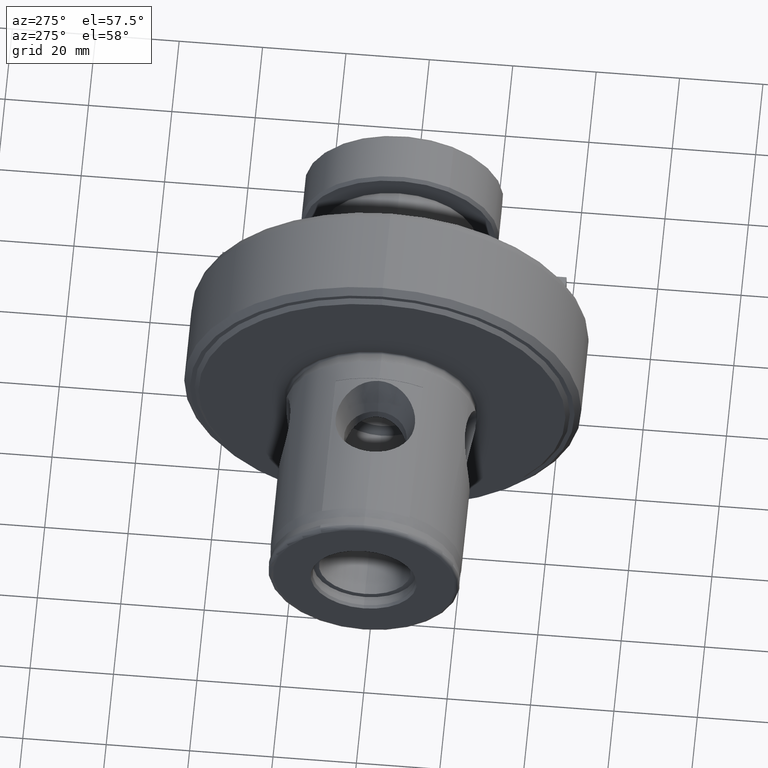
[diagram: clean part render]
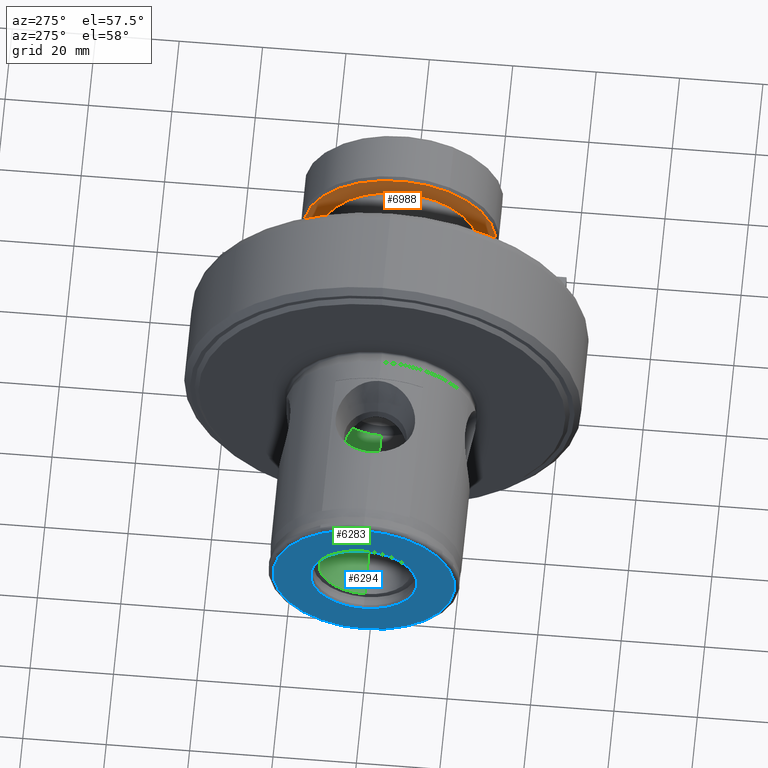
[diagram: same view with three faces highlighted in distinct colors, each labeled with its STEP entity id]
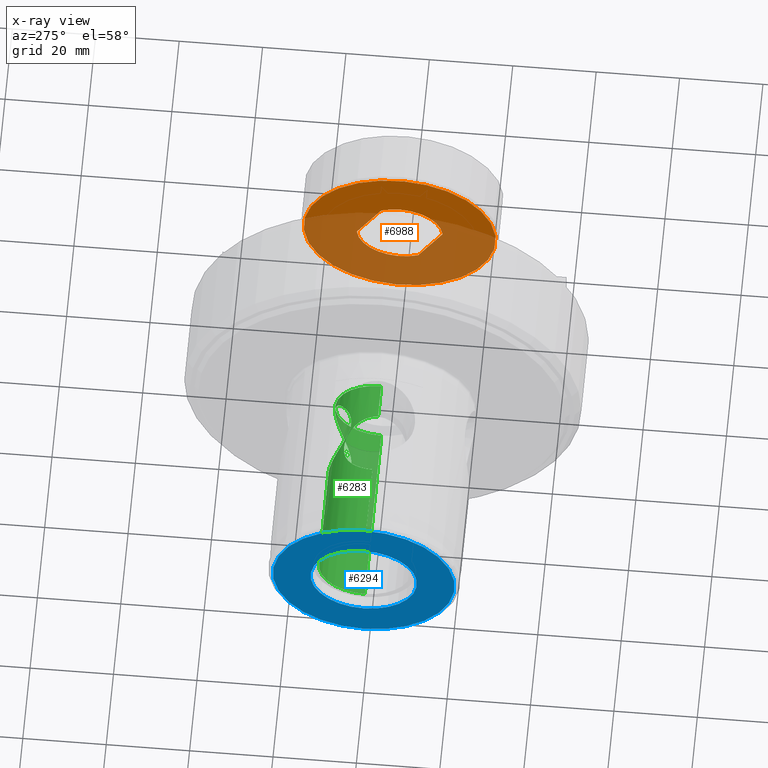
[diagram: x-ray of the same camera — body ghosted, the three highlighted faces saturated]
A machine part, auxiliary view with three faces highlighted in distinct colors.
The next image is the same camera in x-ray (body ghosted, the three faces saturated) — at least one of them is partly hidden behind the body in this view.
Their STEP definitions:

[orange] entity #6988 — the highlighted planar face has unit normal (-1, -0, 0).
#1291 = DIRECTION ( 'NONE',  ( -1.000000000000000000, -0.0000000000000000000, -0.0000000000000000000 ) ) ;
#1331 = DIRECTION ( 'NONE',  ( 0.0000000000000000000, 0.0000000000000000000, 1.000000000000000000 ) ) ;
#1335 = CARTESIAN_POINT ( 'NONE',  ( 12.69999999999999600, 0.0000000000000000000, 0.0000000000000000000 ) ) ;
#1336 = DIRECTION ( 'NONE',  ( 0.0000000000000000000, 0.0000000000000000000, 1.000000000000000000 ) ) ;
#1337 = DIRECTION ( 'NONE',  ( -1.000000000000000000, -0.0000000000000000000, -0.0000000000000000000 ) ) ;
#1338 = CARTESIAN_POINT ( 'NONE',  ( 12.70000000000000300, 0.0000000000000000000, 0.0000000000000000000 ) ) ;
#1717 = EDGE_LOOP ( 'NONE', ( #2624, #2626 ) ) ;
#2193 = CIRCLE ( 'NONE', #3172, 23.05050000000000300 ) ;
#2204 = CIRCLE ( 'NONE', #3171, 10.31239999999991700 ) ;
#2215 = CIRCLE ( 'NONE', #3173, 10.31239999999991700 ) ;
#2546 = EDGE_CURVE ( 'NONE', #4644, #4586, #2193, .T. ) ;
#2549 = EDGE_CURVE ( 'NONE', #4573, #4574, #2204, .T. ) ;
#2555 = EDGE_CURVE ( 'NONE', #4559, #4560, #2215, .T. ) ;
#2614 = ORIENTED_EDGE ( 'NONE', *, *, #2555, .T. ) ;
#2616 = ORIENTED_EDGE ( 'NONE', *, *, #6553, .F. ) ;
#2618 = ORIENTED_EDGE ( 'NONE', *, *, #6551, .T. ) ;
#2620 = ORIENTED_EDGE ( 'NONE', *, *, #2549, .T. ) ;
#2622 = ORIENTED_EDGE ( 'NONE', *, *, #6555, .F. ) ;
#2624 = ORIENTED_EDGE ( 'NONE', *, *, #2546, .F. ) ;
#2626 = ORIENTED_EDGE ( 'NONE', *, *, #6550, .F. ) ;
#3171 = AXIS2_PLACEMENT_3D ( 'NONE', #1335, #1291, #1331 ) ;
#3172 = AXIS2_PLACEMENT_3D ( 'NONE', #1338, #1337, #1336 ) ;
#3173 = AXIS2_PLACEMENT_3D ( 'NONE', #4831, #4841, #4842 ) ;
#4559 = VERTEX_POINT ( 'NONE', #6013 ) ;
#4560 = VERTEX_POINT ( 'NONE', #6014 ) ;
#4573 = VERTEX_POINT ( 'NONE', #6027 ) ;
#4574 = VERTEX_POINT ( 'NONE', #6028 ) ;
#4586 = VERTEX_POINT ( 'NONE', #6040 ) ;
#4644 = VERTEX_POINT ( 'NONE', #6095 ) ;
#4831 = CARTESIAN_POINT ( 'NONE',  ( 12.69999999999999600, 0.0000000000000000000, 0.0000000000000000000 ) ) ;
#4841 = DIRECTION ( 'NONE',  ( -1.000000000000000000, -0.0000000000000000000, -0.0000000000000000000 ) ) ;
#4842 = DIRECTION ( 'NONE',  ( 0.0000000000000000000, 0.0000000000000000000, 1.000000000000000000 ) ) ;
#6013 = CARTESIAN_POINT ( 'NONE',  ( 12.69999999999999900, 8.500000000000000000, -5.839143238523804200 ) ) ;
#6014 = CARTESIAN_POINT ( 'NONE',  ( 12.69999999999999900, -8.500000000000000000, -5.839143238523804200 ) ) ;
#6027 = CARTESIAN_POINT ( 'NONE',  ( 12.69999999999999600, 0.0000000000000000000, 10.31239999999991300 ) ) ;
#6028 = CARTESIAN_POINT ( 'NONE',  ( 12.69999999999999900, 8.500000000000000000, 5.839143238523803300 ) ) ;
#6040 = CARTESIAN_POINT ( 'NONE',  ( 12.70000000000000300, 2.869531147422120600E-015, -23.05050000000000300 ) ) ;
#6095 = CARTESIAN_POINT ( 'NONE',  ( 12.70000000000000300, 0.0000000000000000000, 23.05050000000000300 ) ) ;
#6550 = EDGE_CURVE ( 'NONE', #4586, #4644, #7563, .T. ) ;
#6551 = EDGE_CURVE ( 'NONE', #9303, #4573, #7565, .T. ) ;
#6553 = EDGE_CURVE ( 'NONE', #9303, #4560, #7566, .T. ) ;
#6555 = EDGE_CURVE ( 'NONE', #4559, #4574, #7558, .T. ) ;
#6831 = EDGE_LOOP ( 'NONE', ( #2614, #2616, #2618, #2620, #2622 ) ) ;
#6988 = ADVANCED_FACE ( 'NONE', ( #7640, #7641 ), #8690, .T. ) ;
#7558 = LINE ( 'NONE', #8542, #7564 ) ;
#7563 = CIRCLE ( 'NONE', #9053, 23.05050000000000300 ) ;
#7564 = VECTOR ( 'NONE', #8543, 1000.000000000000000 ) ;
#7565 = CIRCLE ( 'NONE', #9054, 10.31239999999991700 ) ;
#7566 = LINE ( 'NONE', #8537, #7567 ) ;
#7567 = VECTOR ( 'NONE', #8538, 1000.000000000000000 ) ;
#7640 = FACE_BOUND ( 'NONE', #6831, .T. ) ;
#7641 = FACE_OUTER_BOUND ( 'NONE', #1717, .T. ) ;
#8507 = CARTESIAN_POINT ( 'NONE',  ( 12.70000000000000300, 0.0000000000000000000, 0.0000000000000000000 ) ) ;
#8522 = CARTESIAN_POINT ( 'NONE',  ( 12.69999999999999600, 0.0000000000000000000, 0.0000000000000000000 ) ) ;
#8530 = DIRECTION ( 'NONE',  ( -1.000000000000000000, -0.0000000000000000000, -0.0000000000000000000 ) ) ;
#8531 = DIRECTION ( 'NONE',  ( 0.0000000000000000000, 0.0000000000000000000, 1.000000000000000000 ) ) ;
#8533 = DIRECTION ( 'NONE',  ( -1.000000000000000000, -0.0000000000000000000, -0.0000000000000000000 ) ) ;
#8534 = DIRECTION ( 'NONE',  ( 0.0000000000000000000, 0.0000000000000000000, 1.000000000000000000 ) ) ;
#8537 = CARTESIAN_POINT ( 'NONE',  ( 12.69999999999999900, -8.500000000000000000, 10.00000000000000000 ) ) ;
#8538 = DIRECTION ( 'NONE',  ( 0.0000000000000000000, 0.0000000000000000000, -1.000000000000000000 ) ) ;
#8542 = CARTESIAN_POINT ( 'NONE',  ( 12.69999999999999900, 8.500000000000000000, 10.00000000000000000 ) ) ;
#8543 = DIRECTION ( 'NONE',  ( 0.0000000000000000000, 0.0000000000000000000, 1.000000000000000000 ) ) ;
#8685 = CARTESIAN_POINT ( 'NONE',  ( 12.69999999999999900, 23.05050000000000300, 0.0000000000000000000 ) ) ;
#8690 = PLANE ( 'NONE',  #9088 ) ;
#8692 = DIRECTION ( 'NONE',  ( 1.000000000000000000, 0.0000000000000000000, 0.0000000000000000000 ) ) ;
#8693 = DIRECTION ( 'NONE',  ( 0.0000000000000000000, 0.0000000000000000000, -1.000000000000000000 ) ) ;
#8874 = CARTESIAN_POINT ( 'NONE',  ( 12.69999999999999900, -8.500000000000000000, 5.839143238523803300 ) ) ;
#9053 = AXIS2_PLACEMENT_3D ( 'NONE', #8507, #8530, #8531 ) ;
#9054 = AXIS2_PLACEMENT_3D ( 'NONE', #8522, #8533, #8534 ) ;
#9088 = AXIS2_PLACEMENT_3D ( 'NONE', #8685, #8692, #8693 ) ;
#9303 = VERTEX_POINT ( 'NONE', #8874 ) ;

[blue] entity #6294 — the highlighted planar face has unit normal (1, 0, 0).
#260 = CARTESIAN_POINT ( 'NONE',  ( 4.472333961502705800E-016, 21.79999999999998600, 0.0000000000000000000 ) ) ;
#261 = PLANE ( 'NONE',  #7204 ) ;
#263 = DIRECTION ( 'NONE',  ( 1.000000000000000000, 0.0000000000000000000, 0.0000000000000000000 ) ) ;
#264 = DIRECTION ( 'NONE',  ( 0.0000000000000000000, 0.0000000000000000000, -1.000000000000000000 ) ) ;
#682 = CIRCLE ( 'NONE', #3209, 21.79999999999998600 ) ;
#734 = CIRCLE ( 'NONE', #7100, 21.79999999999998600 ) ;
#748 = CIRCLE ( 'NONE', #7112, 12.75000000000000000 ) ;
#978 = FACE_BOUND ( 'NONE', #1654, .T. ) ;
#996 = FACE_OUTER_BOUND ( 'NONE', #1649, .T. ) ;
#1649 = EDGE_LOOP ( 'NONE', ( #2194, #2197 ) ) ;
#1654 = EDGE_LOOP ( 'NONE', ( #2188, #2191 ) ) ;
#2188 = ORIENTED_EDGE ( 'NONE', *, *, #3040, .F. ) ;
#2191 = ORIENTED_EDGE ( 'NONE', *, *, #2927, .F. ) ;
#2194 = ORIENTED_EDGE ( 'NONE', *, *, #2978, .T. ) ;
#2197 = ORIENTED_EDGE ( 'NONE', *, *, #3027, .T. ) ;
#2255 = CIRCLE ( 'NONE', #3189, 12.75000000000000000 ) ;
#2927 = EDGE_CURVE ( 'NONE', #3959, #3962, #2255, .T. ) ;
#2978 = EDGE_CURVE ( 'NONE', #3889, #3905, #682, .T. ) ;
#3027 = EDGE_CURVE ( 'NONE', #3905, #3889, #734, .T. ) ;
#3040 = EDGE_CURVE ( 'NONE', #3962, #3959, #748, .T. ) ;
#3189 = AXIS2_PLACEMENT_3D ( 'NONE', #4965, #4979, #4980 ) ;
#3209 = AXIS2_PLACEMENT_3D ( 'NONE', #5213, #5277, #5278 ) ;
#3889 = VERTEX_POINT ( 'NONE', #5796 ) ;
#3905 = VERTEX_POINT ( 'NONE', #5806 ) ;
#3959 = VERTEX_POINT ( 'NONE', #5818 ) ;
#3962 = VERTEX_POINT ( 'NONE', #5819 ) ;
#4965 = CARTESIAN_POINT ( 'NONE',  ( 1.111307226797642000E-015, 0.0000000000000000000, 0.0000000000000000000 ) ) ;
#4979 = DIRECTION ( 'NONE',  ( -1.000000000000000000, -0.0000000000000000000, -0.0000000000000000000 ) ) ;
#4980 = DIRECTION ( 'NONE',  ( 0.0000000000000000000, 0.0000000000000000000, 1.000000000000000000 ) ) ;
#5213 = CARTESIAN_POINT ( 'NONE',  ( -2.168404344971008900E-016, 0.0000000000000000000, 0.0000000000000000000 ) ) ;
#5277 = DIRECTION ( 'NONE',  ( -1.000000000000000000, -0.0000000000000000000, -0.0000000000000000000 ) ) ;
#5278 = DIRECTION ( 'NONE',  ( 0.0000000000000000000, 0.0000000000000000000, 1.000000000000000000 ) ) ;
#5529 = CARTESIAN_POINT ( 'NONE',  ( -2.168404344971008900E-016, 0.0000000000000000000, 0.0000000000000000000 ) ) ;
#5582 = DIRECTION ( 'NONE',  ( -1.000000000000000000, -0.0000000000000000000, -0.0000000000000000000 ) ) ;
#5583 = DIRECTION ( 'NONE',  ( 0.0000000000000000000, 0.0000000000000000000, 1.000000000000000000 ) ) ;
#5661 = CARTESIAN_POINT ( 'NONE',  ( 1.111307226797642000E-015, 0.0000000000000000000, 0.0000000000000000000 ) ) ;
#5668 = DIRECTION ( 'NONE',  ( -1.000000000000000000, -0.0000000000000000000, -0.0000000000000000000 ) ) ;
#5669 = DIRECTION ( 'NONE',  ( 0.0000000000000000000, 0.0000000000000000000, 1.000000000000000000 ) ) ;
#5796 = CARTESIAN_POINT ( 'NONE',  ( -2.168404344971008900E-016, 0.0000000000000000000, 21.79999999999998600 ) ) ;
#5806 = CARTESIAN_POINT ( 'NONE',  ( -2.168404344971008900E-016, 2.742092521891342400E-015, -21.79999999999998600 ) ) ;
#5818 = CARTESIAN_POINT ( 'NONE',  ( 1.111307226797642000E-015, 1.561424668912875100E-015, -12.75000000000000000 ) ) ;
#5819 = CARTESIAN_POINT ( 'NONE',  ( 1.111307226797642000E-015, 0.0000000000000000000, 12.75000000000000000 ) ) ;
#6294 = ADVANCED_FACE ( 'NONE', ( #978, #996 ), #261, .F. ) ;
#7100 = AXIS2_PLACEMENT_3D ( 'NONE', #5529, #5582, #5583 ) ;
#7112 = AXIS2_PLACEMENT_3D ( 'NONE', #5661, #5668, #5669 ) ;
#7204 = AXIS2_PLACEMENT_3D ( 'NONE', #260, #263, #264 ) ;

[green] entity #6283 — the highlighted cylindrical surface (partial cylindrical patch) has radius 11 mm, axis along (-1, -0, -0).
#225 = DIRECTION ( 'NONE',  ( 0.0000000000000000000, 0.0000000000000000000, 1.000000000000000000 ) ) ;
#226 = DIRECTION ( 'NONE',  ( -1.000000000000000000, -0.0000000000000000000, -0.0000000000000000000 ) ) ;
#227 = CARTESIAN_POINT ( 'NONE',  ( 0.0000000000000000000, 0.0000000000000000000, 0.0000000000000000000 ) ) ;
#670 = LINE ( 'NONE', #5202, #672 ) ;
#672 = VECTOR ( 'NONE', #5215, 1000.000000000000000 ) ;
#673 = VECTOR ( 'NONE', #5220, 1000.000000000000000 ) ;
#674 = LINE ( 'NONE', #5214, #673 ) ;
#676 = LINE ( 'NONE', #5221, #677 ) ;
#677 = VECTOR ( 'NONE', #5222, 1000.000000000000000 ) ;
#730 = CIRCLE ( 'NONE', #7097, 11.00000000000000000 ) ;
#731 = CIRCLE ( 'NONE', #7095, 11.00000000000000000 ) ;
#965 = FACE_OUTER_BOUND ( 'NONE', #1627, .T. ) ;
#967 = CYLINDRICAL_SURFACE ( 'NONE', #7219, 11.00000000000000000 ) ;
#973 = FACE_BOUND ( 'NONE', #1632, .T. ) ;
#1627 = EDGE_LOOP ( 'NONE', ( #2071, #2073, #2074, #2076, #2077, #2079 ) ) ;
#1632 = EDGE_LOOP ( 'NONE', ( #2081, #2083 ) ) ;
#2071 = ORIENTED_EDGE ( 'NONE', *, *, #2973, .F. ) ;
#2073 = ORIENTED_EDGE ( 'NONE', *, *, #3018, .F. ) ;
#2074 = ORIENTED_EDGE ( 'NONE', *, *, #2971, .T. ) ;
#2076 = ORIENTED_EDGE ( 'NONE', *, *, #3021, .F. ) ;
#2077 = ORIENTED_EDGE ( 'NONE', *, *, #2974, .T. ) ;
#2079 = ORIENTED_EDGE ( 'NONE', *, *, #3019, .T. ) ;
#2081 = ORIENTED_EDGE ( 'NONE', *, *, #3022, .T. ) ;
#2083 = ORIENTED_EDGE ( 'NONE', *, *, #2567, .T. ) ;
#2567 = EDGE_CURVE ( 'NONE', #9274, #9275, #7033, .T. ) ;
#2971 = EDGE_CURVE ( 'NONE', #3951, #9287, #670, .T. ) ;
#2973 = EDGE_CURVE ( 'NONE', #3975, #3875, #674, .T. ) ;
#2974 = EDGE_CURVE ( 'NONE', #9288, #3877, #676, .T. ) ;
#3018 = EDGE_CURVE ( 'NONE', #3951, #3975, #730, .T. ) ;
#3019 = EDGE_CURVE ( 'NONE', #3877, #3875, #731, .T. ) ;
#3021 = EDGE_CURVE ( 'NONE', #9288, #9287, #7049, .T. ) ;
#3022 = EDGE_CURVE ( 'NONE', #9275, #9274, #7050, .T. ) ;
#3875 = VERTEX_POINT ( 'NONE', #5791 ) ;
#3877 = VERTEX_POINT ( 'NONE', #5793 ) ;
#3951 = VERTEX_POINT ( 'NONE', #5816 ) ;
#3975 = VERTEX_POINT ( 'NONE', #5820 ) ;
#4871 = CARTESIAN_POINT ( 'NONE',  ( 37.99999999999999300, 6.324555320336754600, -9.000000000000003600 ) ) ;
#4873 = CARTESIAN_POINT ( 'NONE',  ( 37.68704853472900900, 6.324555320336755500, -9.000000000000003600 ) ) ;
#4874 = CARTESIAN_POINT ( 'NONE',  ( 37.37621731899003000, 6.347894227592905600, -8.983724380777520200 ) ) ;
#4875 = CARTESIAN_POINT ( 'NONE',  ( 36.75856573218269600, 6.437997773600920400, -8.919374952405206600 ) ) ;
#4876 = CARTESIAN_POINT ( 'NONE',  ( 36.45023659715000300, 6.505455086465423700, -8.870726595185530500 ) ) ;
#4877 = CARTESIAN_POINT ( 'NONE',  ( 35.56178348825185500, 6.754377607669280100, -8.684545351785475400 ) ) ;
#4878 = CARTESIAN_POINT ( 'NONE',  ( 35.00587502797888800, 6.982137574739823500, -8.506897211298190000 ) ) ;
#4879 = CARTESIAN_POINT ( 'NONE',  ( 33.94538452571078600, 7.498357647435790700, -8.055568128153831600 ) ) ;
#4880 = CARTESIAN_POINT ( 'NONE',  ( 33.45605761540715400, 7.779283033584964500, -7.788385423207046200 ) ) ;
#4881 = CARTESIAN_POINT ( 'NONE',  ( 32.76597117201573900, 8.207467075943775100, -7.326768196248646200 ) ) ;
#4882 = CARTESIAN_POINT ( 'NONE',  ( 32.54346331369473700, 8.351529607590666900, -7.162630017601376400 ) ) ;
#4883 = CARTESIAN_POINT ( 'NONE',  ( 32.11240224775286800, 8.639332235174997300, -6.812727360299549100 ) ) ;
#4884 = CARTESIAN_POINT ( 'NONE',  ( 31.90312402947130400, 8.783602170141932700, -6.626238705432833800 ) ) ;
#4885 = CARTESIAN_POINT ( 'NONE',  ( 31.30097602784038500, 9.208474581211643100, -6.036457715081473600 ) ) ;
#4886 = CARTESIAN_POINT ( 'NONE',  ( 30.93797117138967000, 9.477738077880648100, -5.608197967950848900 ) ) ;
#4887 = CARTESIAN_POINT ( 'NONE',  ( 30.45016142005553000, 9.848293230677800400, -4.907236627955188400 ) ) ;
#4888 = CARTESIAN_POINT ( 'NONE',  ( 30.29710993387518100, 9.966266519665989400, -4.663753832353025400 ) ) ;
#4889 = CARTESIAN_POINT ( 'NONE',  ( 30.01123720998651500, 10.18883133069318300, -4.155091366563167900 ) ) ;
#4890 = CARTESIAN_POINT ( 'NONE',  ( 29.87773150708435200, 10.29397154860355800, -3.888328396208883900 ) ) ;
#4891 = CARTESIAN_POINT ( 'NONE',  ( 29.51573923968089700, 10.58116722006071000, -3.062465036862899800 ) ) ;
#4892 = CARTESIAN_POINT ( 'NONE',  ( 29.32798476031976200, 10.73303995099937100, -2.485920569551095700 ) ) ;
#4893 = CARTESIAN_POINT ( 'NONE',  ( 29.13388790492684100, 10.89066197485386700, -1.577329599810559400 ) ) ;
#4894 = CARTESIAN_POINT ( 'NONE',  ( 29.08387648782997900, 10.93146341324059600, -1.265123403570820300 ) ) ;
#4895 = CARTESIAN_POINT ( 'NONE',  ( 29.01756788672948800, 10.98561425411707000, -0.6432021774063030300 ) ) ;
#4896 = CARTESIAN_POINT ( 'NONE',  ( 29.00071516957387300, 10.99941486172795300, -0.3318139073566014900 ) ) ;
#4897 = CARTESIAN_POINT ( 'NONE',  ( 28.99932927823760000, 11.00054877189566900, 0.2918124169082674200 ) ) ;
#4898 = CARTESIAN_POINT ( 'NONE',  ( 29.01479483002167100, 10.98788290588001700, 0.6040504403491774300 ) ) ;
#4899 = CARTESIAN_POINT ( 'NONE',  ( 29.07882424051058500, 10.93558575195800300, 1.229394952563908100 ) ) ;
#4900 = CARTESIAN_POINT ( 'NONE',  ( 29.12746308204172900, 10.89589586246527700, 1.540691347388884800 ) ) ;
#4901 = CARTESIAN_POINT ( 'NONE',  ( 29.25414893641672600, 10.79298596828219600, 2.146096540715382300 ) ) ;
#4902 = CARTESIAN_POINT ( 'NONE',  ( 29.33239189154941000, 10.72960462351119500, 2.442414731716945100 ) ) ;
#4903 = CARTESIAN_POINT ( 'NONE',  ( 29.51740374296812800, 10.58071000996650000, 3.022975485109892000 ) ) ;
#4904 = CARTESIAN_POINT ( 'NONE',  ( 29.62486903029115800, 10.49464205608620100, 3.308720680275715400 ) ) ;
#4905 = CARTESIAN_POINT ( 'NONE',  ( 29.98422543537168400, 10.20937874570883100, 4.136322440102841100 ) ) ;
#4906 = CARTESIAN_POINT ( 'NONE',  ( 30.27061858885437900, 9.984873728867768200, 4.646559155060561600 ) ) ;
#4907 = CARTESIAN_POINT ( 'NONE',  ( 30.76383285977956600, 9.609927495919182000, 5.359230109251165600 ) ) ;
#4908 = CARTESIAN_POINT ( 'NONE',  ( 30.93938088378459700, 9.478236986029871900, 5.588225433440646500 ) ) ;
#4909 = CARTESIAN_POINT ( 'NONE',  ( 31.30563826794932000, 9.208643388611752900, 6.022136398295424800 ) ) ;
#4910 = CARTESIAN_POINT ( 'NONE',  ( 31.49700084325653600, 9.070227025113874600, 6.228095582515771300 ) ) ;
#4911 = CARTESIAN_POINT ( 'NONE',  ( 31.89613122761824500, 8.788471667187465600, 6.619740072472756900 ) ) ;
#4912 = CARTESIAN_POINT ( 'NONE',  ( 32.10389577112384500, 8.645121770151423100, 6.805420925311393500 ) ) ;
#4913 = CARTESIAN_POINT ( 'NONE',  ( 32.53662872687993300, 8.355986537263465400, 7.157469761059691600 ) ) ;
#4914 = CARTESIAN_POINT ( 'NONE',  ( 32.76260568321725200, 8.209575931333875000, 7.324464543071721700 ) ) ;
#4915 = CARTESIAN_POINT ( 'NONE',  ( 33.45930032922788700, 7.777229871337427300, 7.790658944439934800 ) ) ;
#4916 = CARTESIAN_POINT ( 'NONE',  ( 33.94870166744494400, 7.496988139732033900, 8.056647767958626400 ) ) ;
#4917 = CARTESIAN_POINT ( 'NONE',  ( 34.73243995391150900, 7.115117841734856600, 8.390691223271492300 ) ) ;
#4918 = CARTESIAN_POINT ( 'NONE',  ( 35.00207751755012000, 6.994374932525724700, 8.491102994853580600 ) ) ;
#4919 = CARTESIAN_POINT ( 'NONE',  ( 35.56241124897072600, 6.773151438223580500, 8.668594485892477100 ) ) ;
#4920 = CARTESIAN_POINT ( 'NONE',  ( 35.85582995770683100, 6.672033518611987000, 8.746130474273465800 ) ) ;
#4921 = CARTESIAN_POINT ( 'NONE',  ( 36.45039919126643500, 6.505369226234754400, 8.870794822159666600 ) ) ;
#4922 = CARTESIAN_POINT ( 'NONE',  ( 36.75246002574597500, 6.439239462942333100, 8.918479843861577500 ) ) ;
#4923 = CARTESIAN_POINT ( 'NONE',  ( 37.36758758028115300, 6.348810466722628800, 8.983078160859573600 ) ) ;
#4924 = CARTESIAN_POINT ( 'NONE',  ( 37.68253252754212200, 6.324555320336753700, 9.000000000000003600 ) ) ;
#4925 = CARTESIAN_POINT ( 'NONE',  ( 38.00000000000014900, 6.324555320337297300, 9.000000000000078200 ) ) ;
#5202 = CARTESIAN_POINT ( 'NONE',  ( 0.0000000000000000000, 0.0000000000000000000, 11.00000000000000000 ) ) ;
#5214 = CARTESIAN_POINT ( 'NONE',  ( 0.0000000000000000000, 1.347111479062088400E-015, -11.00000000000000000 ) ) ;
#5215 = DIRECTION ( 'NONE',  ( -1.000000000000000000, -0.0000000000000000000, -0.0000000000000000000 ) ) ;
#5220 = DIRECTION ( 'NONE',  ( -1.000000000000000000, -0.0000000000000000000, -0.0000000000000000000 ) ) ;
#5221 = CARTESIAN_POINT ( 'NONE',  ( 0.0000000000000000000, 0.0000000000000000000, 11.00000000000000000 ) ) ;
#5222 = DIRECTION ( 'NONE',  ( -1.000000000000000000, -0.0000000000000000000, -0.0000000000000000000 ) ) ;
#5381 = CARTESIAN_POINT ( 'NONE',  ( 48.00000000000000000, 0.0000000000000000000, 0.0000000000000000000 ) ) ;
#5414 = CARTESIAN_POINT ( 'NONE',  ( 3.000000000000000900, 0.0000000000000000000, 0.0000000000000000000 ) ) ;
#5417 = CARTESIAN_POINT ( 'NONE',  ( 24.29999999999999000, 2.258330804627538900E-020, 11.00000000000000000 ) ) ;
#5418 = DIRECTION ( 'NONE',  ( -1.000000000000000000, -0.0000000000000000000, -0.0000000000000000000 ) ) ;
#5419 = DIRECTION ( 'NONE',  ( 0.0000000000000000000, 0.0000000000000000000, 1.000000000000000000 ) ) ;
#5421 = DIRECTION ( 'NONE',  ( -1.000000000000000000, -0.0000000000000000000, -0.0000000000000000000 ) ) ;
#5422 = DIRECTION ( 'NONE',  ( 0.0000000000000000000, 0.0000000000000000000, 1.000000000000000000 ) ) ;
#5423 = CARTESIAN_POINT ( 'NONE',  ( 38.00000000000014900, 6.324555320337297300, 9.000000000000078200 ) ) ;
#5428 = CARTESIAN_POINT ( 'NONE',  ( 24.29999999999999000, 0.2532377264689830700, 11.00000000000000400 ) ) ;
#5429 = CARTESIAN_POINT ( 'NONE',  ( 24.31279293125874500, 0.5060086885394248200, 10.99126544930787500 ) ) ;
#5430 = CARTESIAN_POINT ( 'NONE',  ( 24.36407565706269200, 1.010615480387610400, 10.95639618308991300 ) ) ;
#5431 = CARTESIAN_POINT ( 'NONE',  ( 24.40295549914072000, 1.264124710560105400, 10.92999732757499000 ) ) ;
#5432 = CARTESIAN_POINT ( 'NONE',  ( 24.55633730870787800, 2.009095652512158400, 10.82658515496157600 ) ) ;
#5433 = CARTESIAN_POINT ( 'NONE',  ( 24.70599634501847000, 2.483928162322172700, 10.72628662467886300 ) ) ;
#5434 = CARTESIAN_POINT ( 'NONE',  ( 24.99682732331299200, 3.166707797428922200, 10.53697028055448500 ) ) ;
#5435 = CARTESIAN_POINT ( 'NONE',  ( 25.10537654587846400, 3.389926411842124400, 10.46707863711808200 ) ) ;
#5436 = CARTESIAN_POINT ( 'NONE',  ( 25.33997156212269500, 3.818064542670237300, 10.31861034351635600 ) ) ;
#5437 = CARTESIAN_POINT ( 'NONE',  ( 25.46642186055300500, 4.024119728424512500, 10.23976181639388900 ) ) ;
#5438 = CARTESIAN_POINT ( 'NONE',  ( 25.73703178549784500, 4.421331028899875700, 10.07462622522845000 ) ) ;
#5439 = CARTESIAN_POINT ( 'NONE',  ( 25.88119242278388300, 4.612484034109403600, 9.988333189148379500 ) ) ;
#5440 = CARTESIAN_POINT ( 'NONE',  ( 26.18734645111605600, 4.980503211646934300, 9.810015118292721300 ) ) ;
#5441 = CARTESIAN_POINT ( 'NONE',  ( 26.34973513523607000, 5.157617743871501400, 9.717793716166696100 ) ) ;
#5442 = CARTESIAN_POINT ( 'NONE',  ( 26.85560533448443700, 5.659380968227359300, 9.440209164204695500 ) ) ;
#5443 = CARTESIAN_POINT ( 'NONE',  ( 27.21993309956259900, 5.958064961341341900, 9.252286078015396600 ) ) ;
#5444 = CARTESIAN_POINT ( 'NONE',  ( 28.00806737447462400, 6.488204517393225700, 8.888562194949138000 ) ) ;
#5445 = CARTESIAN_POINT ( 'NONE',  ( 28.43503943268147400, 6.720249332522851800, 8.711885593599976800 ) ) ;
#5446 = CARTESIAN_POINT ( 'NONE',  ( 29.32759819686305000, 7.097319214656162800, 8.407541950684580100 ) ) ;
#5447 = CARTESIAN_POINT ( 'NONE',  ( 29.79839614849855400, 7.245619088673263000, 8.277657284277161400 ) ) ;
#5448 = CARTESIAN_POINT ( 'NONE',  ( 30.78856460776648200, 7.448651717178698600, 8.095442772959604100 ) ) ;
#5449 = CARTESIAN_POINT ( 'NONE',  ( 31.29141382819270600, 7.500185362316639000, 8.046565701927924900 ) ) ;
#5450 = CARTESIAN_POINT ( 'NONE',  ( 32.05838236706396300, 7.499906575631859700, 8.046825546321475300 ) ) ;
#5451 = CARTESIAN_POINT ( 'NONE',  ( 32.31659318216672700, 7.486489242035201400, 8.059387843211769800 ) ) ;
#5452 = CARTESIAN_POINT ( 'NONE',  ( 32.82142083755871200, 7.434452848701833500, 8.107414163520180800 ) ) ;
#5453 = CARTESIAN_POINT ( 'NONE',  ( 33.07007651717232500, 7.395916222106835700, 8.142790671076594900 ) ) ;
#5454 = CARTESIAN_POINT ( 'NONE',  ( 33.56043567830499800, 7.294760951974120100, 8.233533830072520500 ) ) ;
#5455 = CARTESIAN_POINT ( 'NONE',  ( 33.80314614133707400, 7.231815912302060700, 8.289173360619472000 ) ) ;
#5456 = CARTESIAN_POINT ( 'NONE',  ( 34.27746926979698100, 7.083353857473911200, 8.416392013305836500 ) ) ;
#5457 = CARTESIAN_POINT ( 'NONE',  ( 34.50692423430975700, 6.998651384262013100, 8.487262369499617900 ) ) ;
#5458 = CARTESIAN_POINT ( 'NONE',  ( 35.17522059415173900, 6.715067086464472400, 8.715896335599051500 ) ) ;
#5459 = CARTESIAN_POINT ( 'NONE',  ( 35.59425610840023800, 6.487090177623531200, 8.889467921946149400 ) ) ;
#5460 = CARTESIAN_POINT ( 'NONE',  ( 36.38748684525007300, 5.952619829403667900, 9.255879000641675300 ) ) ;
#5461 = CARTESIAN_POINT ( 'NONE',  ( 36.75365337721140000, 5.651106213961318400, 9.445113022976196100 ) ) ;
#5462 = CARTESIAN_POINT ( 'NONE',  ( 37.25664516097928200, 5.150819778726361900, 9.721386010834463000 ) ) ;
#5463 = CARTESIAN_POINT ( 'NONE',  ( 37.41686450622306400, 4.975741804207021200, 9.812428498660057800 ) ) ;
#5464 = CARTESIAN_POINT ( 'NONE',  ( 37.72240180175336400, 4.607855280061479600, 9.990466919091362600 ) ) ;
#5465 = CARTESIAN_POINT ( 'NONE',  ( 37.86822529902524100, 4.414142281510915000, 10.07779076808573200 ) ) ;
#5466 = CARTESIAN_POINT ( 'NONE',  ( 38.27429659652967300, 3.816480711961524300, 10.32572275253269600 ) ) ;
#5467 = CARTESIAN_POINT ( 'NONE',  ( 38.50622188751629000, 3.393510738022121200, 10.47388004210188600 ) ) ;
#5468 = CARTESIAN_POINT ( 'NONE',  ( 38.79422539784049200, 2.718573682580865700, 10.66132621669235200 ) ) ;
#5469 = CARTESIAN_POINT ( 'NONE',  ( 38.88016117923312700, 2.486802777858204000, 10.71800024571811800 ) ) ;
#5470 = CARTESIAN_POINT ( 'NONE',  ( 39.03044363774270700, 2.008371275762798700, 10.81786310423032700 ) ) ;
#5471 = CARTESIAN_POINT ( 'NONE',  ( 39.09450916790748900, 1.761796833767188800, 10.86086761022070000 ) ) ;
#5472 = CARTESIAN_POINT ( 'NONE',  ( 39.24750942866275200, 1.019691937113429400, 10.96401941234320200 ) ) ;
#5473 = CARTESIAN_POINT ( 'NONE',  ( 39.29999999999998300, 0.5136220447435404500, 10.99999999999999500 ) ) ;
#5474 = CARTESIAN_POINT ( 'NONE',  ( 39.29999999999999000, 1.134577180984299700E-015, 11.00000000000000000 ) ) ;
#5475 = CARTESIAN_POINT ( 'NONE',  ( 38.63506453204707500, 6.324555320336756400, 9.000000000000005300 ) ) ;
#5476 = CARTESIAN_POINT ( 'NONE',  ( 39.24858208869458300, 6.421128397702461600, 8.933792976719392000 ) ) ;
#5477 = CARTESIAN_POINT ( 'NONE',  ( 40.14355949969465300, 6.671793649059012800, 8.746316722886339400 ) ) ;
#5478 = CARTESIAN_POINT ( 'NONE',  ( 40.43272854881510600, 6.771442408310745600, 8.669914765027602500 ) ) ;
#5479 = CARTESIAN_POINT ( 'NONE',  ( 40.99065416860938200, 6.991300054572819900, 8.493619833077231000 ) ) ;
#5480 = CARTESIAN_POINT ( 'NONE',  ( 41.26054667750450700, 7.111861497588425800, 8.393462625440385200 ) ) ;
#5481 = CARTESIAN_POINT ( 'NONE',  ( 42.04806485527157600, 7.495096154904531200, 8.058454495181846900 ) ) ;
#5482 = CARTESIAN_POINT ( 'NONE',  ( 42.54632757909222100, 7.780654904042038700, 7.787064382157711700 ) ) ;
#5483 = CARTESIAN_POINT ( 'NONE',  ( 43.46784796422478100, 8.352655723735777500, 7.170084015435710600 ) ) ;
#5484 = CARTESIAN_POINT ( 'NONE',  ( 43.89542543010363600, 8.641548153922773400, 6.823073606755329500 ) ) ;
#5485 = CARTESIAN_POINT ( 'NONE',  ( 44.69190910391125000, 9.203366826855463100, 6.043899981808402300 ) ) ;
#5486 = CARTESIAN_POINT ( 'NONE',  ( 45.06304376935430900, 9.478467829318058000, 5.607305554645748200 ) ) ;
#5487 = CARTESIAN_POINT ( 'NONE',  ( 45.71725069202564400, 9.975506169973163800, 4.666101652065223400 ) ) ;
#5488 = CARTESIAN_POINT ( 'NONE',  ( 46.00362563505204600, 10.19983137480277500, 4.159577662267055100 ) ) ;
#5489 = CARTESIAN_POINT ( 'NONE',  ( 46.36466785987298100, 10.48629117458023400, 3.335020090288989300 ) ) ;
#5490 = CARTESIAN_POINT ( 'NONE',  ( 46.47279249563802500, 10.57284959928780000, 3.050255294031569300 ) ) ;
#5491 = CARTESIAN_POINT ( 'NONE',  ( 46.65917574417212400, 10.72279163946958200, 2.472032658451155800 ) ) ;
#5492 = CARTESIAN_POINT ( 'NONE',  ( 46.73817599520399600, 10.78676577896199600, 2.176972083629170400 ) ) ;
#5493 = CARTESIAN_POINT ( 'NONE',  ( 46.86659550294036300, 10.89105651715151500, 1.574297101343243000 ) ) ;
#5494 = CARTESIAN_POINT ( 'NONE',  ( 46.91614740903808200, 10.93148274493100800, 1.265464211947518800 ) ) ;
#5495 = CARTESIAN_POINT ( 'NONE',  ( 46.98277198995923200, 10.98589199867829300, 0.6394463760321449400 ) ) ;
#5496 = CARTESIAN_POINT ( 'NONE',  ( 46.99945477618493300, 10.99955390799993400, 0.3270880132073231100 ) ) ;
#5497 = CARTESIAN_POINT ( 'NONE',  ( 47.00051899953816600, 11.00042463577867500, -0.2963622376991566500 ) ) ;
#5498 = CARTESIAN_POINT ( 'NONE',  ( 46.98489825422081600, 10.98763210947561900, -0.6074540486949804300 ) ) ;
#5499 = CARTESIAN_POINT ( 'NONE',  ( 46.92123903578732300, 10.93563755197361000, -1.228369295578587900 ) ) ;
#5500 = CARTESIAN_POINT ( 'NONE',  ( 46.87263552835598500, 10.89597579326362200, -1.540291302733669500 ) ) ;
#5501 = CARTESIAN_POINT ( 'NONE',  ( 46.68205065472832200, 10.74115974393061100, -2.450842812997113800 ) ) ;
#5502 = CARTESIAN_POINT ( 'NONE',  ( 46.49633905486658800, 10.59087095141755900, -3.028991403410706600 ) ) ;
#5503 = CARTESIAN_POINT ( 'NONE',  ( 46.01712027941727700, 10.21043523797946600, -4.133805593220784200 ) ) ;
#5504 = CARTESIAN_POINT ( 'NONE',  ( 45.72997300482469300, 9.985354041722068500, -4.645278640837757300 ) ) ;
#5505 = CARTESIAN_POINT ( 'NONE',  ( 45.07546786174457100, 9.487731981132125000, -5.591855760278639000 ) ) ;
#5506 = CARTESIAN_POINT ( 'NONE',  ( 44.70540164537321500, 9.213182384378717100, -6.029082159531553100 ) ) ;
#5507 = CARTESIAN_POINT ( 'NONE',  ( 43.90811780204792600, 8.650212389584901000, -6.812223348458251900 ) ) ;
#5508 = CARTESIAN_POINT ( 'NONE',  ( 43.47853198897398400, 8.359513932091445600, -7.162354338445944700 ) ) ;
#5509 = CARTESIAN_POINT ( 'NONE',  ( 42.54834658000564900, 7.781684717236291100, -7.786281256917036800 ) ) ;
#5510 = CARTESIAN_POINT ( 'NONE',  ( 42.05550310043201300, 7.499170577374032500, -8.054674320068283300 ) ) ;
#5511 = CARTESIAN_POINT ( 'NONE',  ( 41.26908298465744500, 7.115793493933869800, -8.390132143739951000 ) ) ;
#5512 = CARTESIAN_POINT ( 'NONE',  ( 40.99861641742757700, 6.994647420814202700, -8.490884733572785900 ) ) ;
#5513 = CARTESIAN_POINT ( 'NONE',  ( 40.43680876987920700, 6.772844978559365200, -8.668840002948803300 ) ) ;
#5514 = CARTESIAN_POINT ( 'NONE',  ( 40.14520377559620800, 6.672417728769110200, -8.745833673684748200 ) ) ;
#5515 = CARTESIAN_POINT ( 'NONE',  ( 39.55311257179663900, 6.506259890984440900, -8.870137948528054000 ) ) ;
#5516 = CARTESIAN_POINT ( 'NONE',  ( 39.25081776414826600, 6.439773594340238100, -8.918097037106674600 ) ) ;
#5517 = CARTESIAN_POINT ( 'NONE',  ( 38.63133643436897600, 6.348600204817961100, -8.983229605715196800 ) ) ;
#5518 = CARTESIAN_POINT ( 'NONE',  ( 38.31301533714152900, 6.324555320336754600, -9.000000000000003600 ) ) ;
#5519 = CARTESIAN_POINT ( 'NONE',  ( 37.99999999999999300, 6.324555320336754600, -9.000000000000003600 ) ) ;
#5791 = CARTESIAN_POINT ( 'NONE',  ( 3.000000000000000900, 1.347111479062088400E-015, -11.00000000000000000 ) ) ;
#5793 = CARTESIAN_POINT ( 'NONE',  ( 3.000000000000000900, 0.0000000000000000000, 11.00000000000000000 ) ) ;
#5816 = CARTESIAN_POINT ( 'NONE',  ( 48.00000000000000000, 0.0000000000000000000, 11.00000000000000000 ) ) ;
#5820 = CARTESIAN_POINT ( 'NONE',  ( 48.00000000000000000, 1.347111479062088400E-015, -11.00000000000000000 ) ) ;
#6283 = ADVANCED_FACE ( 'NONE', ( #965, #973 ), #967, .F. ) ;
#7033 = B_SPLINE_CURVE_WITH_KNOTS ( 'NONE', 3,
 ( #4871, #4873, #4874, #4875, #4876, #4877, #4878, #4879, #4880, #4881, #4882, #4883, #4884, #4885, #4886, #4887, #4888, #4889, #4890, #4891, #4892, #4893, #4894, #4895, #4896, #4897, #4898, #4899, #4900, #4901, #4902, #4903, #4904, #4905, #4906, #4907, #4908, #4909, #4910, #4911, #4912, #4913, #4914, #4915, #4916, #4917, #4918, #4919, #4920, #4921, #4922, #4923, #4924, #4925 ),
 .UNSPECIFIED., .F., .F.,
 ( 4, 2, 2, 2, 2, 2, 2, 2, 2, 2, 2, 2, 2, 2, 2, 2, 2, 2, 2, 2, 2, 2, 2, 2, 2, 2, 4 ),
 ( 0.02997932417630955200, 0.03091598688851944500, 0.03185264960072933800, 0.03372597502514913800, 0.03559930044956893800, 0.03653596316177883800, 0.03747262587398873100, 0.03934595129840853100, 0.04028261401061843100, 0.04121927672282832400, 0.04309260214724811700, 0.04402926485945801700, 0.04496592757166791000, 0.04590259028387781000, 0.04683925299608771000, 0.04777591570829760300, 0.04871257842050749600, 0.05058590384492728900, 0.05152256655713718900, 0.05245922926934708200, 0.05339589198155698200, 0.05433255469376688200, 0.05620588011818669600, 0.05714254283039659600, 0.05807920554260649600, 0.05901586825481640300, 0.05995253096702631000 ),
 .UNSPECIFIED. ) ;
#7049 = B_SPLINE_CURVE_WITH_KNOTS ( 'NONE', 3,
 ( #5417, #5428, #5429, #5430, #5431, #5432, #5433, #5434, #5435, #5436, #5437, #5438, #5439, #5440, #5441, #5442, #5443, #5444, #5445, #5446, #5447, #5448, #5449, #5450, #5451, #5452, #5453, #5454, #5455, #5456, #5457, #5458, #5459, #5460, #5461, #5462, #5463, #5464, #5465, #5466, #5467, #5468, #5469, #5470, #5471, #5472, #5473, #5474 ),
 .UNSPECIFIED., .F., .F.,
 ( 4, 2, 2, 2, 2, 2, 2, 2, 2, 2, 2, 2, 2, 2, 2, 2, 2, 2, 2, 2, 2, 2, 2, 4 ),
 ( 0.02429713500112121500, 0.02505523886545146400, 0.02581334272978171700, 0.02732955045844221900, 0.02808765432277247200, 0.02884575818710272100, 0.02960386205143297400, 0.03036196591576322700, 0.03187817364442373200, 0.03339438137308423100, 0.03491058910174473600, 0.03642679683040524200, 0.03718490069473549800, 0.03794300455906576100, 0.03870110842339602500, 0.03945921228772628100, 0.04097542001638680700, 0.04249162774504733300, 0.04324973160937759000, 0.04400783547370784600, 0.04552404320236835100, 0.04628214706669860100, 0.04704025093102885700, 0.04855645865968937600 ),
 .UNSPECIFIED. ) ;
#7050 = B_SPLINE_CURVE_WITH_KNOTS ( 'NONE', 3,
 ( #5423, #5475, #5476, #5477, #5478, #5479, #5480, #5481, #5482, #5483, #5484, #5485, #5486, #5487, #5488, #5489, #5490, #5491, #5492, #5493, #5494, #5495, #5496, #5497, #5498, #5499, #5500, #5501, #5502, #5503, #5504, #5505, #5506, #5507, #5508, #5509, #5510, #5511, #5512, #5513, #5514, #5515, #5516, #5517, #5518, #5519 ),
 .UNSPECIFIED., .F., .F.,
 ( 4, 2, 2, 2, 2, 2, 2, 2, 2, 2, 2, 2, 2, 2, 2, 2, 2, 2, 2, 2, 2, 2, 4 ),
 ( 2.259156830382659900E-016, 0.001873707761019564700, 0.002810561641529234700, 0.003747415522038905200, 0.005621123283058243100, 0.007494831044077582300, 0.009368538805096922300, 0.01124224656611625900, 0.01217910044662592400, 0.01311595432713558700, 0.01405280820764525200, 0.01498966208815491800, 0.01592651596866458500, 0.01686336984917425100, 0.01873707761019357400, 0.02061078537121290000, 0.02248449313223222600, 0.02435820089325155300, 0.02623190865427087500, 0.02716876253478054500, 0.02810561641529021500, 0.02904247029579988500, 0.02997932417630955200 ),
 .UNSPECIFIED. ) ;
#7095 = AXIS2_PLACEMENT_3D ( 'NONE', #5414, #5421, #5422 ) ;
#7097 = AXIS2_PLACEMENT_3D ( 'NONE', #5381, #5418, #5419 ) ;
#7219 = AXIS2_PLACEMENT_3D ( 'NONE', #227, #226, #225 ) ;
#8845 = CARTESIAN_POINT ( 'NONE',  ( 37.99999999999999300, 6.324555320336754600, -9.000000000000003600 ) ) ;
#8846 = CARTESIAN_POINT ( 'NONE',  ( 38.00000000000014900, 6.324555320337297300, 9.000000000000078200 ) ) ;
#8858 = CARTESIAN_POINT ( 'NONE',  ( 39.29999999999999000, 1.134577180984299700E-015, 11.00000000000000000 ) ) ;
#8859 = CARTESIAN_POINT ( 'NONE',  ( 24.29999999999999000, 2.258330804627538900E-020, 11.00000000000000000 ) ) ;
#9274 = VERTEX_POINT ( 'NONE', #8845 ) ;
#9275 = VERTEX_POINT ( 'NONE', #8846 ) ;
#9287 = VERTEX_POINT ( 'NONE', #8858 ) ;
#9288 = VERTEX_POINT ( 'NONE', #8859 ) ;